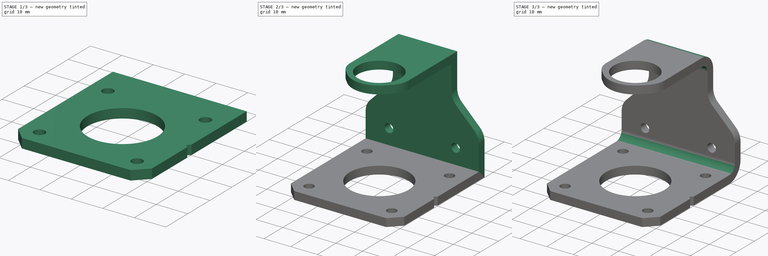
[diagram: build sequence overview — one tinted view per stage of 3, left to right]
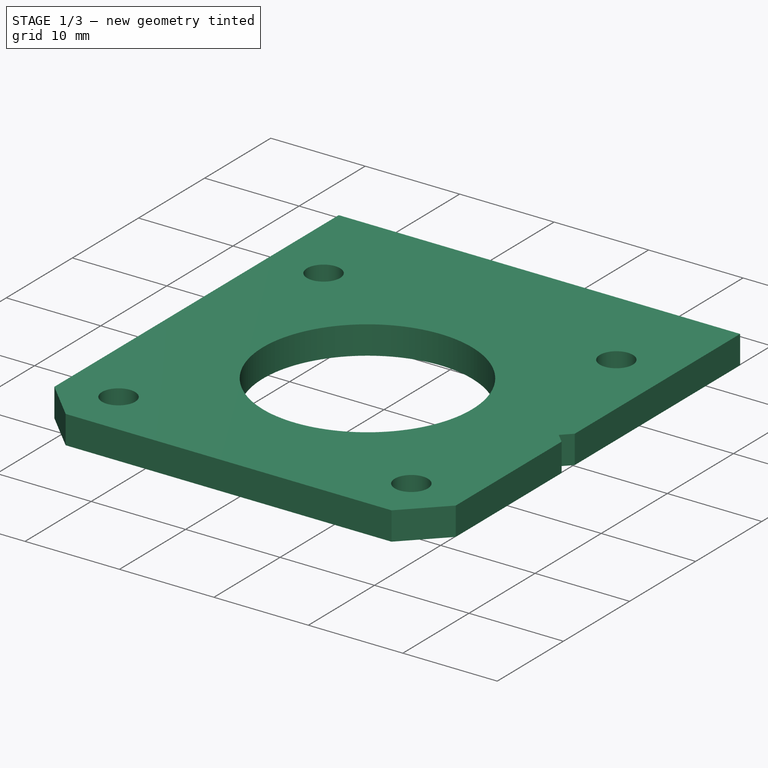
[diagram: stage 1 of 3 — iso view after this stage's code; geometry added in this stage tinted green]
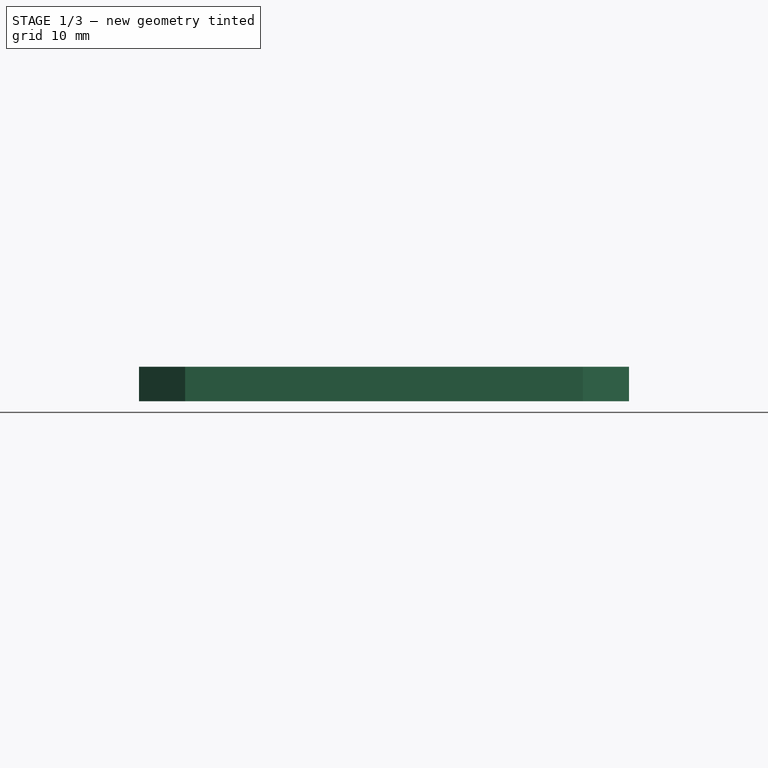
[diagram: stage 1 of 3 — front view after this stage's code; geometry added in this stage tinted green]
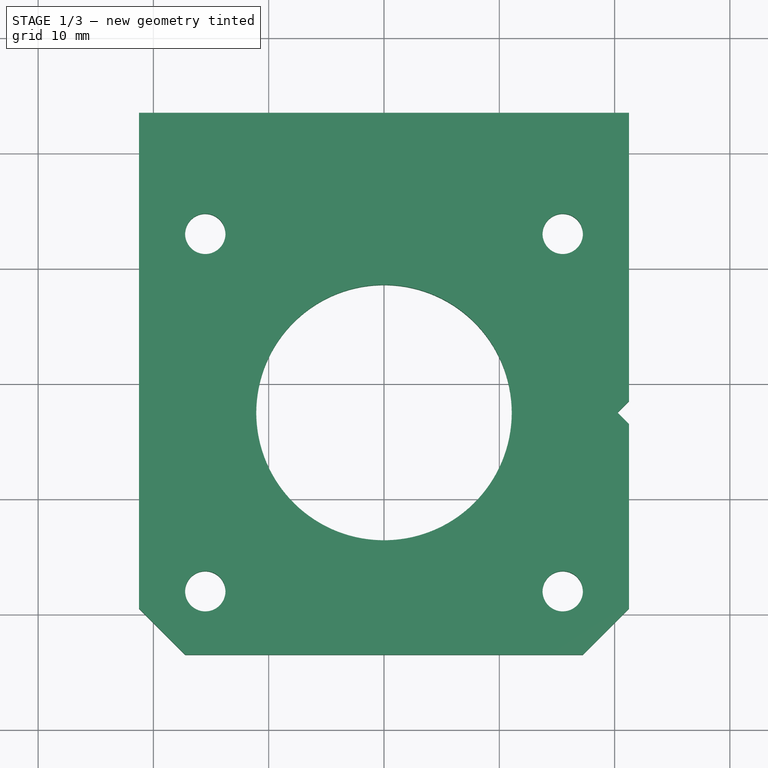
[diagram: stage 1 of 3 — top view after this stage's code; geometry added in this stage tinted green]
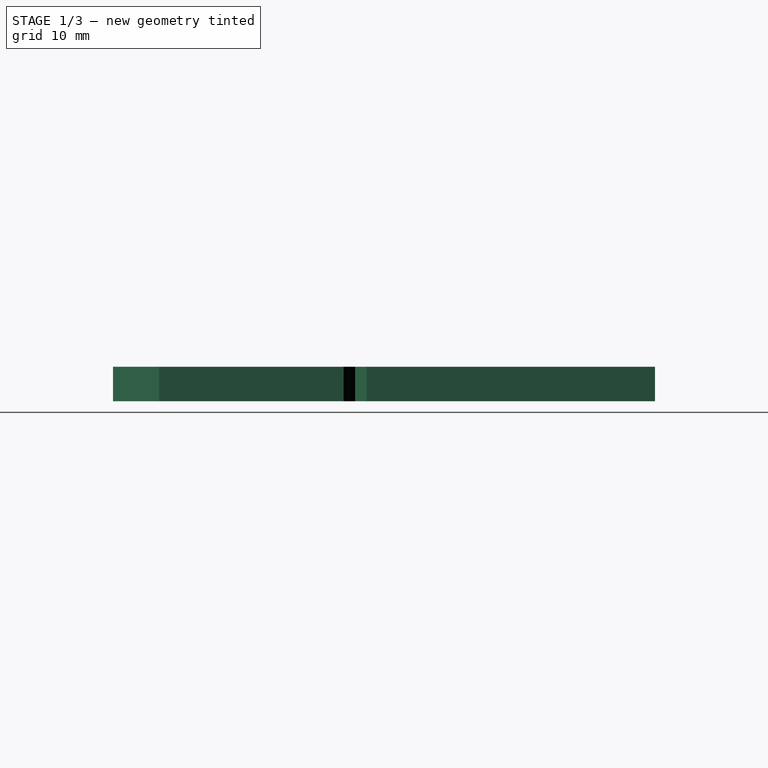
[diagram: stage 1 of 3 — right view after this stage's code; geometry added in this stage tinted green]
FCSTD DOCUMENT  (FreeCAD 0.14R3310 (Git))
Label: 23. SOPORTE MOTOR
License: CC-BY 3.0
LicenseURL: http://creativecommons.org/licenses/by/3.0/
objects: Sketcher::SketchObject×3, PartDesign::Pad×3, PartDesign::Fillet×2, PartDesign::Chamfer×1
note: 12 computed .brp shape members not serialized (recipe doc carries the construction recipe); baked Part::Feature solids carry a one-line shape summary decoded from their .brp

FEATURE [Sketcher::SketchObject] Sketch
  sketch-geometry (14):
    g0: LineSegment StartX=-21.25 StartY=23.5 StartZ=0 EndX=21.25 EndY=23.5 EndZ=0
    g1: LineSegment [constr] StartX=21.25 StartY=23.5 StartZ=0 EndX=21.25 EndY=-23.5 EndZ=0
    g2: LineSegment StartX=21.25 StartY=-23.5 StartZ=0 EndX=-21.25 EndY=-23.5 EndZ=0
    g3: LineSegment StartX=-21.25 StartY=-23.5 StartZ=0 EndX=-21.25 EndY=23.5 EndZ=0
    g4: Circle CenterX=0 CenterY=-2.5 CenterZ=0 NormalX=0 NormalY=0 NormalZ=1 Radius=11.08
    g5: Circle CenterX=-15.5 CenterY=-18 CenterZ=0 NormalX=0 NormalY=0 NormalZ=1 Radius=1.75
    g6: Circle CenterX=15.5 CenterY=-18 CenterZ=0 NormalX=0 NormalY=0 NormalZ=1 Radius=1.75
    g7: Circle CenterX=-15.5 CenterY=13 CenterZ=0 NormalX=0 NormalY=0 NormalZ=1 Radius=1.75
    g8: Circle CenterX=15.5 CenterY=13 CenterZ=0 NormalX=0 NormalY=0 NormalZ=1 Radius=1.75
    g9: LineSegment [constr] StartX=-21.25 StartY=-2.5 StartZ=0 EndX=21.25 EndY=-2.5 EndZ=0
    g10: LineSegment StartX=20.253 StartY=-2.5 StartZ=0 EndX=21.25 EndY=-1.50298 EndZ=0
    g11: LineSegment StartX=20.253 StartY=-2.5 StartZ=0 EndX=21.25 EndY=-3.49702 EndZ=0
    g12: LineSegment StartX=21.25 StartY=-1.50298 StartZ=0 EndX=21.25 EndY=23.5 EndZ=0
    g13: LineSegment StartX=21.25 StartY=-3.49702 StartZ=0 EndX=21.25 EndY=-23.5 EndZ=0
  constraints (38):
    c: Coincident(g0,g1)
    c: Coincident(g1,g2)
    c: Coincident(g2,g3)
    c: Coincident(g3,g0)
    c: Horizontal(g0)
    c: Horizontal(g2)
    c: Vertical(g1)
    c: Vertical(g3)
    c: Symmetric(g1,g0,g-1)
    c: Distance(g0) = 42.5
    c: Distance(g1) = 47
    c: PointOnObject(g4,g-2)
    c: Distance(g4,g2) = 21
    c: Radius(g4) = 11.08
    c: Equal(g8,g7)
    c: Equal(g7,g5)
    c: Equal(g5,g6)
    c: PointOnObject(g9,g3)
    c: PointOnObject(g9,g1)
    c: Horizontal(g9)
    c: PointOnObject(g4,g9)
    c: Symmetric(g7,g5,g9)
    c: Symmetric(g8,g6,g9)
    c: Symmetric(g8,g7,g-2)
    c: Distance(g5,g2) = 5.5
    c: Distance(g5,g3) = 5.75
    c: Radius(g5) = 1.75
    c: PointOnObject(g10,g9)
    c: PointOnObject(g10,g1)
    c: Coincident(g11,g10)
    c: PointOnObject(g11,g1)
    c: Distance(g10) = 1.41
    c: Distance(g11) = 1.41
    c: Angle(g11,g10) = 1.5708
    c: Coincident(g12,g10)
    c: Coincident(g12,g0)
    c: Coincident(g13,g11)
    c: Coincident(g13,g1)
FEATURE [PartDesign::Pad] Pad
  Length = 3
  Length2 = 100
  Sketch = -> Sketch
  Type = 0
FEATURE [PartDesign::Chamfer] Chamfer
  Base = -> Pad [Edge5,Edge8]
  Size = 4
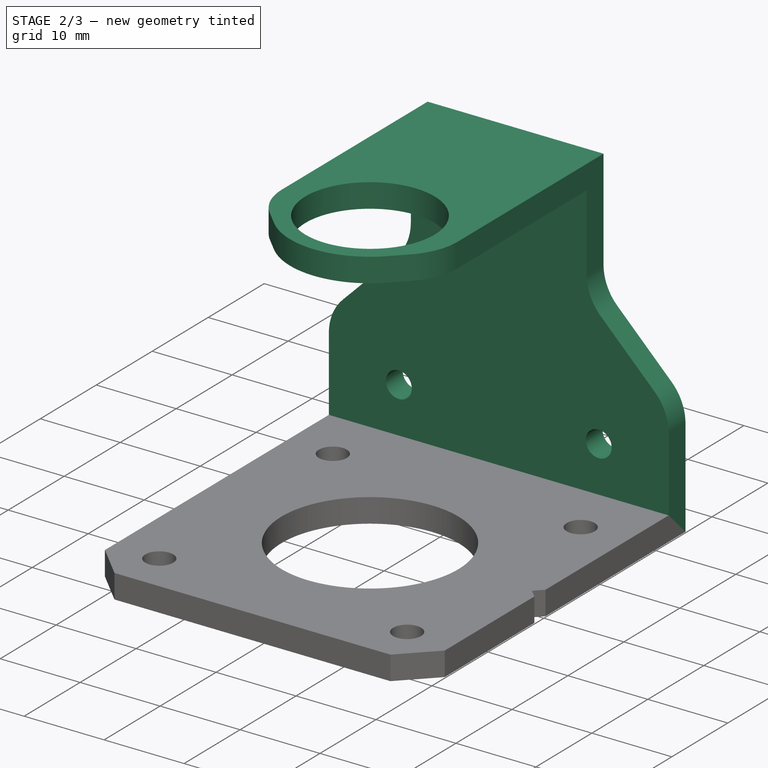
[diagram: stage 2 of 3 — iso view after this stage's code; geometry added in this stage tinted green]
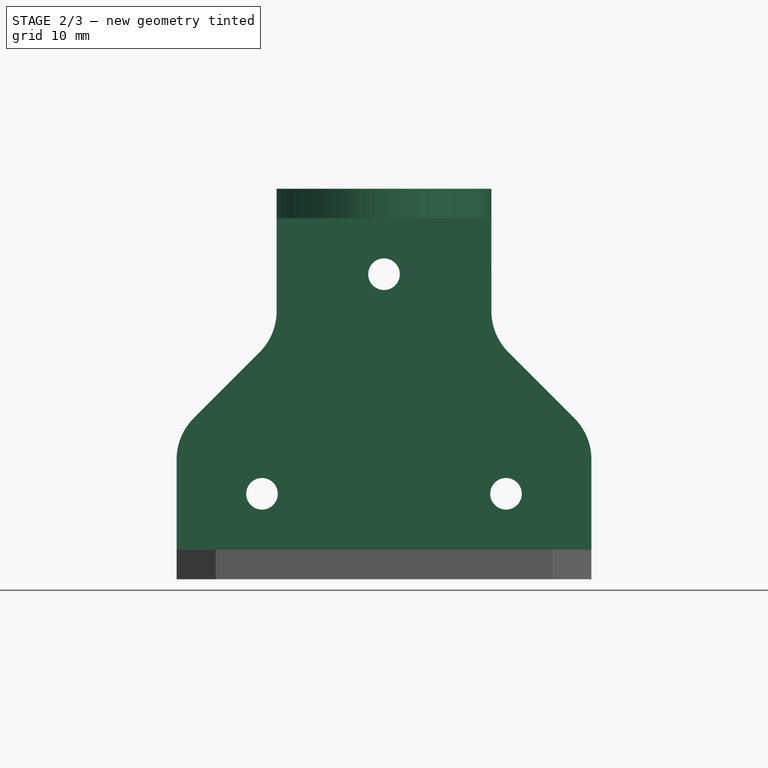
[diagram: stage 2 of 3 — front view after this stage's code; geometry added in this stage tinted green]
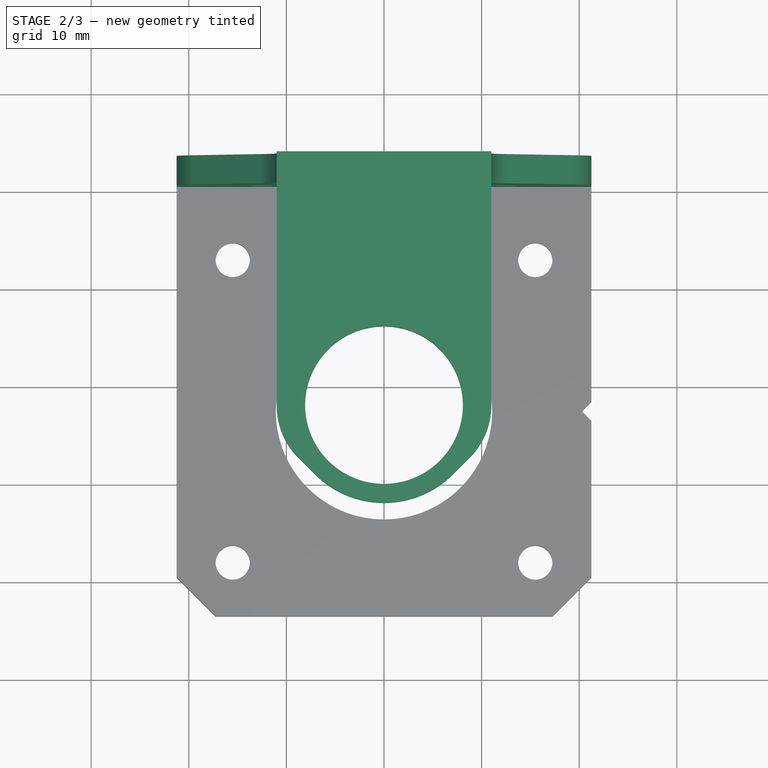
[diagram: stage 2 of 3 — top view after this stage's code; geometry added in this stage tinted green]
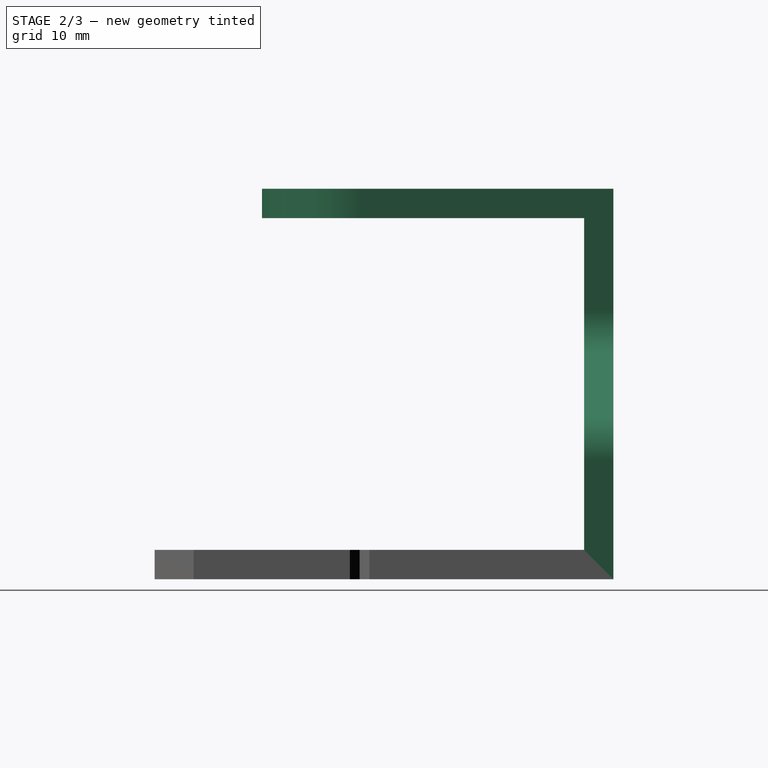
[diagram: stage 2 of 3 — right view after this stage's code; geometry added in this stage tinted green]
FEATURE [Sketcher::SketchObject] Sketch001
  ExternalGeometry = -> [Chamfer]
  Placement = pos=(0,23.5,0) rot=(0,0.707107,0.707107;3.14159rad)
  Support = -> Chamfer [Face11]
  sketch-geometry (15):
    g0: LineSegment StartX=-11 StartY=40 StartZ=0 EndX=11 EndY=40 EndZ=0
    g1: LineSegment StartX=-11 StartY=40 StartZ=0 EndX=-11 EndY=27.4806 EndZ=0
    g2: LineSegment StartX=11 StartY=40 StartZ=0 EndX=11 EndY=27.4806 EndZ=0
    g3: ArcOfCircle CenterX=-15.25 CenterY=12.26 CenterZ=0 NormalX=0 NormalY=0 NormalZ=1 Radius=6 StartAngle=2.35619 EndAngle=3.14159
    g4: LineSegment StartX=-21.25 StartY=0 StartZ=0 EndX=-21.25 EndY=12.26 EndZ=0
    g5: LineSegment StartX=-19.4926 StartY=16.5027 StartZ=0 EndX=-12.7574 EndY=23.2379 EndZ=0
    g6: ArcOfCircle CenterX=-17 CenterY=27.4806 CenterZ=0 NormalX=0 NormalY=0 NormalZ=1 Radius=6 StartAngle=5.49779 EndAngle=6.28319
    g7: LineSegment StartX=-21.25 StartY=0 StartZ=0 EndX=21.25 EndY=0 EndZ=0
    g8: LineSegment StartX=21.25 StartY=0 StartZ=0 EndX=21.25 EndY=12.26 EndZ=0
    g9: ArcOfCircle CenterX=15.25 CenterY=12.26 CenterZ=0 NormalX=0 NormalY=0 NormalZ=1 Radius=6 StartAngle=5.78681e-07 EndAngle=0.785398
    g10: ArcOfCircle CenterX=17 CenterY=27.4806 CenterZ=0 NormalX=0 NormalY=0 NormalZ=1 Radius=6 StartAngle=3.14159 EndAngle=3.92699
    g11: LineSegment StartX=12.7574 StartY=23.2379 StartZ=0 EndX=19.4926 EndY=16.5026 EndZ=0
    g12: Circle CenterX=0 CenterY=31.25 CenterZ=0 NormalX=0 NormalY=0 NormalZ=1 Radius=1.62
    g13: Circle CenterX=12.5 CenterY=8.75 CenterZ=0 NormalX=0 NormalY=0 NormalZ=1 Radius=1.62
    g14: Circle CenterX=-12.5 CenterY=8.75 CenterZ=0 NormalX=0 NormalY=0 NormalZ=1 Radius=1.62
  constraints (44):
    c: Horizontal(g0)
    c: Symmetric(g0,g0,g-2)
    c: Distance(g0) = 22
    c: Coincident(g1,g0)
    c: Vertical(g1)
    c: Coincident(g2,g0)
    c: Vertical(g2)
    c: DistanceY(g-1,g3) = 12.26
    c: Coincident(g4,g-3)
    c: Vertical(g4)
    c: Coincident(g3,g4)
    c: Tangent(g3,g4)
    c: Radius(g3) = 6
    c: Coincident(g5,g3)
    c: Tangent(g5,g3)
    c: Angle(g4,g5) = 2.35619
    c: Coincident(g6,g1)
    c: Coincident(g6,g5)
    c: Tangent(g6,g1)
    c: Tangent(g6,g5)
    c: Radius(g6) = 6
    c: DistanceY(g-1,g0) = 40
    c: Symmetric(g2,g1,g-2)
    c: Coincident(g7,g4)
    c: Coincident(g7,g-4)
    c: Coincident(g8,g7)
    c: Vertical(g8)
    c: Symmetric(g8,g3,g-2)
    c: Coincident(g9,g8)
    c: Coincident(g10,g2)
    c: Coincident(g11,g10)
    c: Symmetric(g9,g3,g-2)
    c: Tangent(g11,g9)
    c: Coincident(g11,g9)
    c: Symmetric(g10,g5,g-2)
    c: PointOnObject(g12,g-2)
    c: Radius(g12) = 1.62
    c: Distance(g12,g0) = 8.75
    c: Equal(g6,g10)
    c: Equal(g14,g13)
    c: Equal(g13,g12)
    c: Symmetric(g13,g14,g-2)
    c: Distance(g14,g7) = 8.75
    c: Distance(g14,g4) = 8.75
FEATURE [PartDesign::Pad] Pad001
  Length = 3
  Length2 = 100
  Reversed = true
  Sketch = -> Sketch001
  Type = 0
FEATURE [Sketcher::SketchObject] Sketch002
  ExternalGeometry = -> [Pad001]
  Placement = pos=(0,0,40) rot=(0,0,1;0rad)
  Support = -> Pad001 [Face10]
  sketch-geometry (10):
    g0: LineSegment StartX=-11 StartY=23.5 StartZ=0 EndX=11 EndY=23.5 EndZ=0
    g1: LineSegment StartX=11 StartY=23.5 StartZ=0 EndX=11 EndY=-2.5 EndZ=0
    g2: LineSegment [constr] StartX=11 StartY=-2.5 StartZ=0 EndX=-11 EndY=-2.5 EndZ=0
    g3: LineSegment StartX=-11 StartY=-2.5 StartZ=0 EndX=-11 EndY=23.5 EndZ=0
    g4: Circle CenterX=0 CenterY=-2.5 CenterZ=0 NormalX=0 NormalY=0 NormalZ=1 Radius=8.08
    g5: LineSegment StartX=-8.77817 StartY=-7.86396 StartZ=0 EndX=-7.07107 EndY=-9.57107 EndZ=0
    g6: LineSegment StartX=8.7782 StartY=-7.86394 StartZ=0 EndX=7.07107 EndY=-9.57107 EndZ=0
    g7: ArcOfCircle CenterX=0 CenterY=-2.5 CenterZ=0 NormalX=0 NormalY=0 NormalZ=1 Radius=10 StartAngle=3.92699 EndAngle=5.49779
    g8: ArcOfCircle CenterX=-3.41421 CenterY=-2.5 CenterZ=0 NormalX=0 NormalY=0 NormalZ=1 Radius=7.58579 StartAngle=3.14159 EndAngle=3.92699
    g9: ArcOfCircle CenterX=3.41429 CenterY=-2.50003 CenterZ=0 NormalX=0 NormalY=0 NormalZ=1 Radius=7.58571 StartAngle=5.49779 EndAngle=6.28319
  constraints (31):
    c: Coincident(g0,g1)
    c: Coincident(g1,g2)
    c: Coincident(g2,g3)
    c: Coincident(g3,g0)
    c: Horizontal(g0)
    c: Horizontal(g2)
    c: Vertical(g1)
    c: Vertical(g3)
    c: Coincident(g0,g-4)
    c: Coincident(g0,g-3)
    c: Distance(g1) = 26
    c: PointOnObject(g4,g2)
    c: PointOnObject(g4,g-2)
    c: Radius(g4) = 8.08
    c: PointOnObject(g7,g-2)
    c: Coincident(g7,g6)
    c: Coincident(g7,g5)
    c: Tangent(g6,g7)
    c: Tangent(g7,g5)
    c: Coincident(g7,g4)
    c: Radius(g7) = 10
    c: Angle(g5,g3) = 2.35619
    c: Angle(g1,g6) = 2.35619
    c: Coincident(g8,g5)
    c: Coincident(g2,g8)
    c: Tangent(g8,g3)
    c: Tangent(g8,g5)
    c: Coincident(g9,g1)
    c: Coincident(g9,g6)
    c: Tangent(g9,g6)
    c: Tangent(g9,g1)
FEATURE [PartDesign::Pad] Pad002
  Length = 3
  Length2 = 100
  Reversed = true
  Sketch = -> Sketch002
  Type = 0
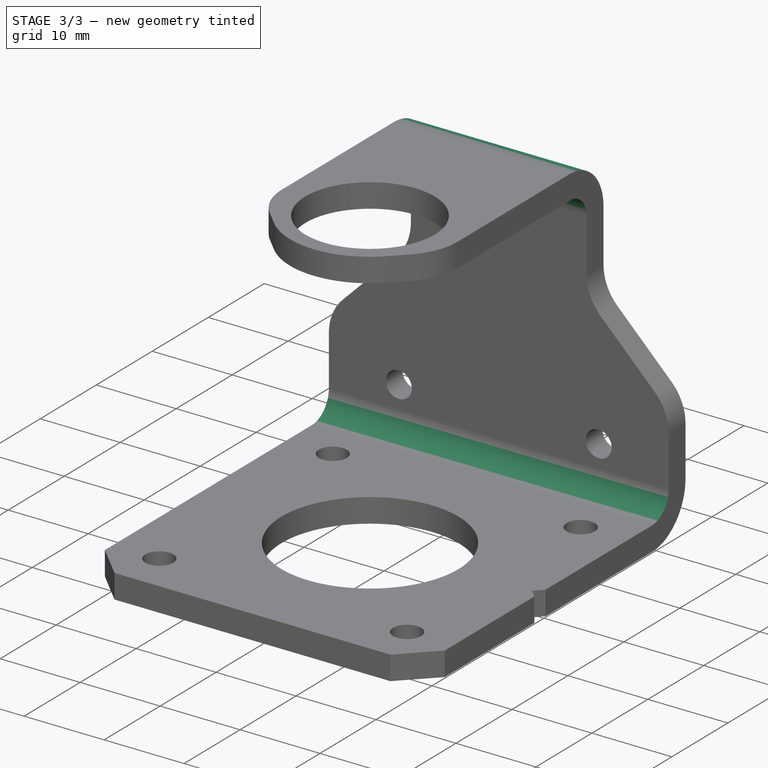
[diagram: stage 3 of 3 — iso view after this stage's code; geometry added in this stage tinted green]
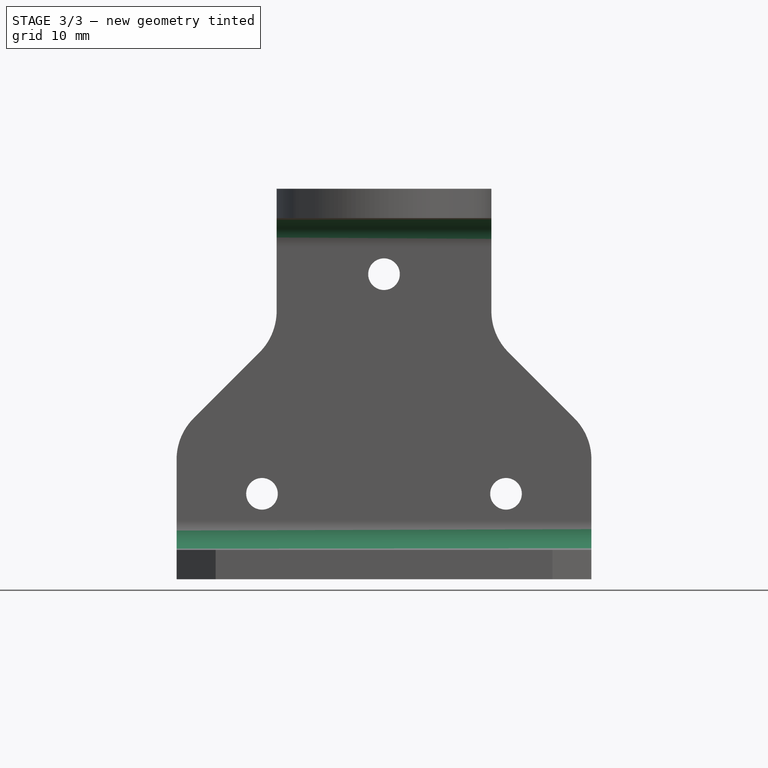
[diagram: stage 3 of 3 — front view after this stage's code; geometry added in this stage tinted green]
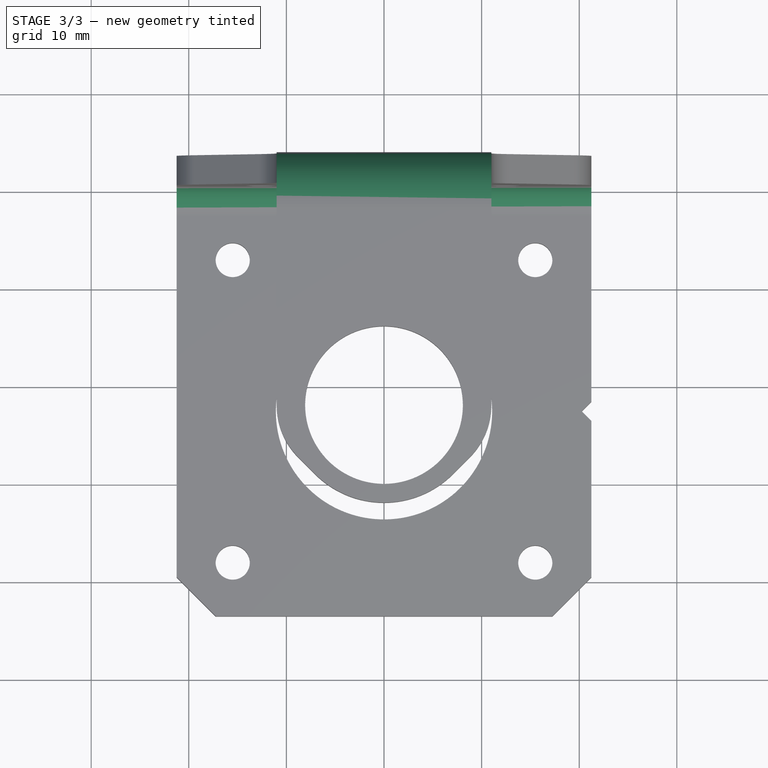
[diagram: stage 3 of 3 — top view after this stage's code; geometry added in this stage tinted green]
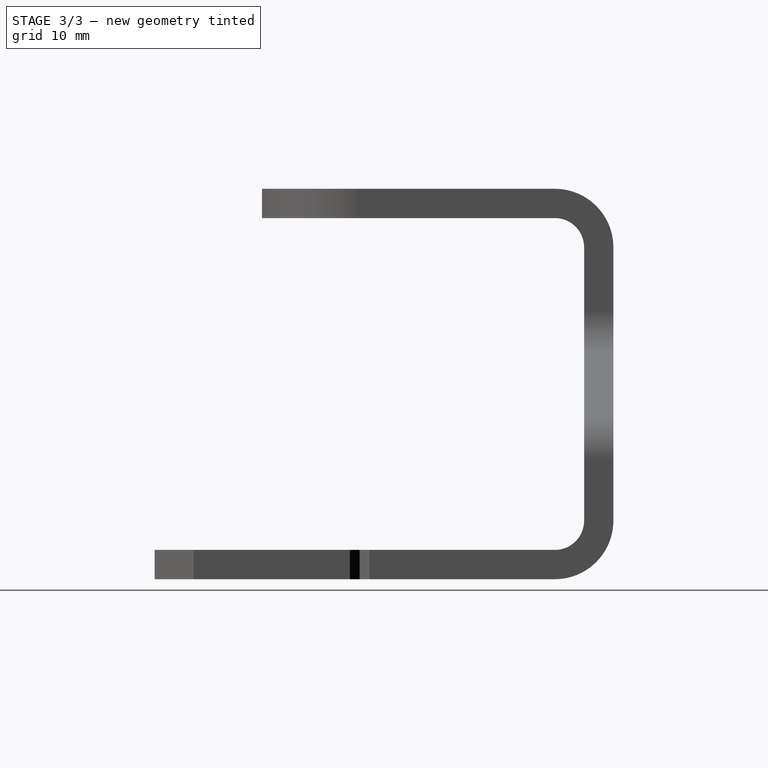
[diagram: stage 3 of 3 — right view after this stage's code; geometry added in this stage tinted green]
FEATURE [PartDesign::Fillet] Fillet
  Base = -> Pad002 [Edge34,Edge99]
  Radius = 6
FEATURE [PartDesign::Fillet] Fillet001
  Base = -> Fillet [Edge38,Edge44]
  Radius = 3
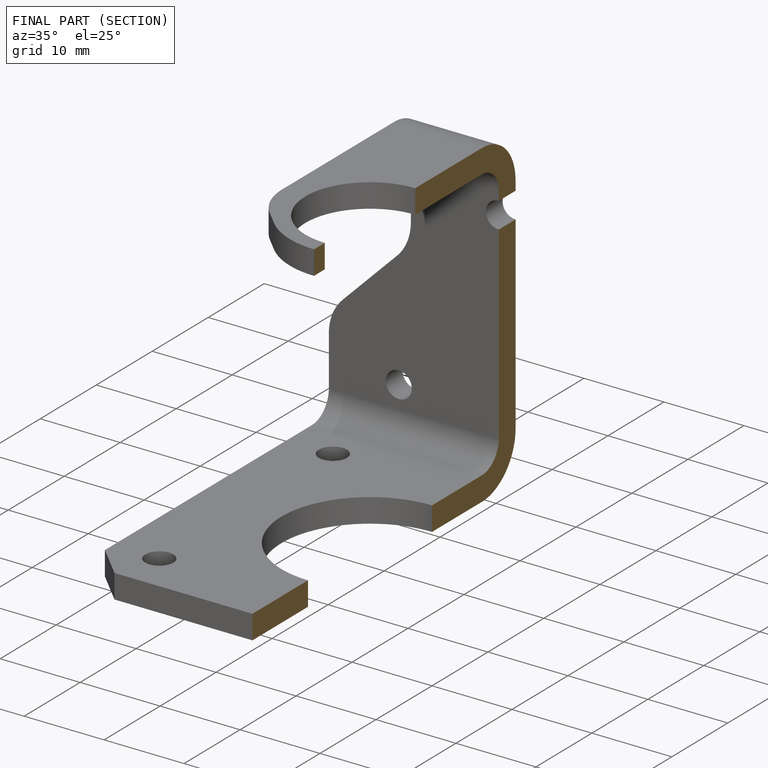
[diagram: finished part — half-section view (interior)]
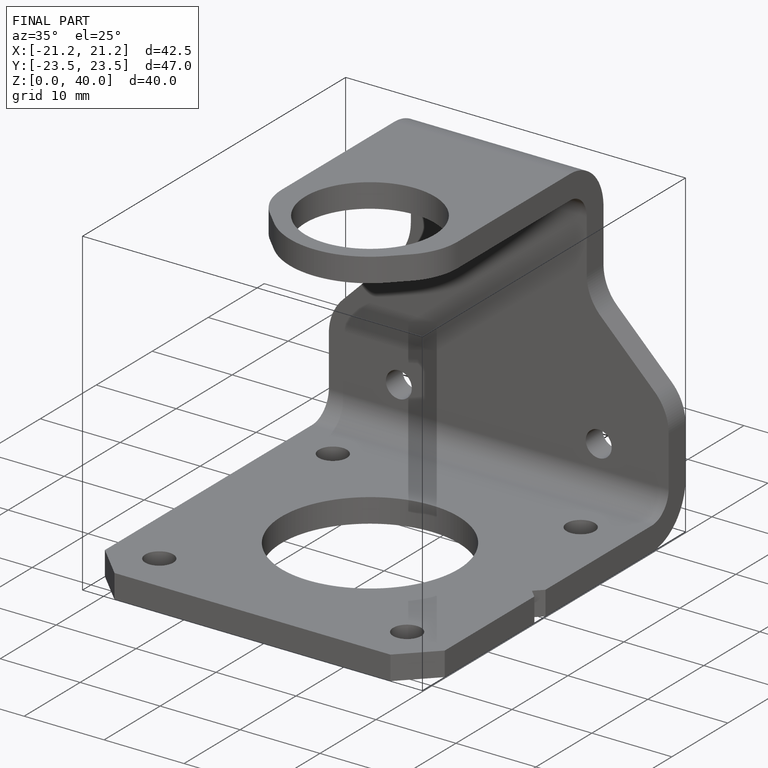
[diagram: finished part — iso view with bounding-box wireframe]
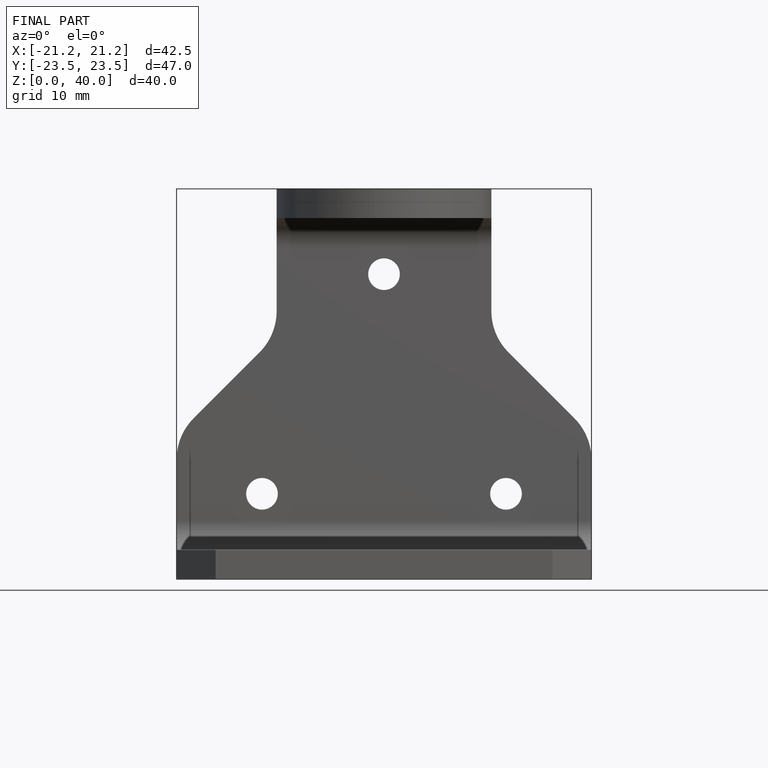
[diagram: finished part — front view with bounding-box wireframe]
